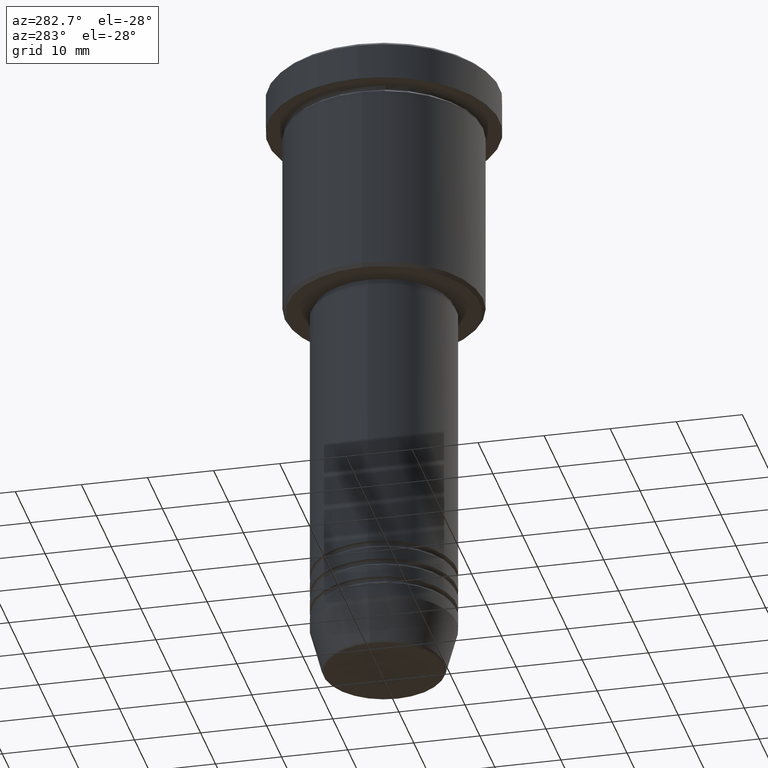
[diagram: clean part render]
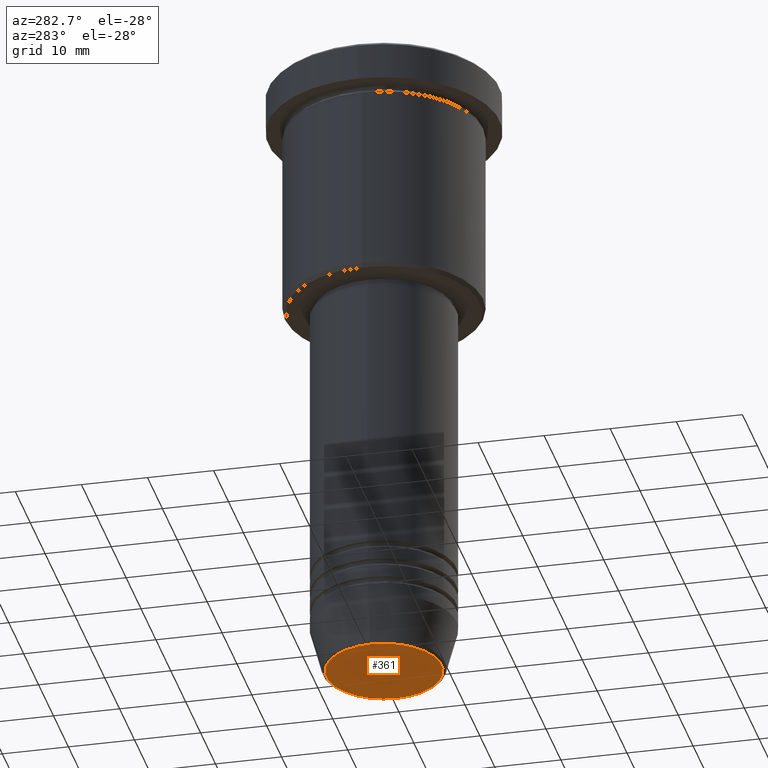
[diagram: same view with one face highlighted and labeled with its STEP entity id]
A machine part, auxiliary view. The second image highlights one B-rep face of the part: STEP entity #361.
In plain terms, the highlighted planar face has unit normal (0, -0, 1).
Its self-contained STEP definition (entity closure, byte-faithful):
#28 = AXIS2_PLACEMENT_3D ( 'NONE', #530, #804, #73 ) ;
#31 = CIRCLE ( 'NONE', #702, 8.740692158992652949 ) ;
#59 = DIRECTION ( 'NONE',  ( 1.000000000000000000, 0.000000000000000000, 0.000000000000000000 ) ) ;
#73 = DIRECTION ( 'NONE',  ( 1.000000000000000000, 0.000000000000000000, 0.000000000000000000 ) ) ;
#97 = FACE_OUTER_BOUND ( 'NONE', #385, .T. ) ;
#188 = ORIENTED_EDGE ( 'NONE', *, *, #291, .T. ) ;
#291 = EDGE_CURVE ( 'NONE', #533, #1182, #1115, .T. ) ;
#324 = CARTESIAN_POINT ( 'NONE',  ( 0.000000000000000000, 0.000000000000000000, -96.00000000000000000 ) ) ;
#361 = ADVANCED_FACE ( 'NONE', ( #97 ), #821, .F. ) ;
#385 = EDGE_LOOP ( 'NONE', ( #188, #992 ) ) ;
#445 = AXIS2_PLACEMENT_3D ( 'NONE', #324, #616, #59 ) ;
#530 = CARTESIAN_POINT ( 'NONE',  ( 0.000000000000000000, 0.000000000000000000, -96.00000000000000000 ) ) ;
#533 = VERTEX_POINT ( 'NONE', #856 ) ;
#552 = DIRECTION ( 'NONE',  ( 0.000000000000000000, 0.000000000000000000, -1.000000000000000000 ) ) ;
#616 = DIRECTION ( 'NONE',  ( 0.000000000000000000, 0.000000000000000000, -1.000000000000000000 ) ) ;
#702 = AXIS2_PLACEMENT_3D ( 'NONE', #1084, #552, #825 ) ;
#758 = EDGE_CURVE ( 'NONE', #1182, #533, #31, .T. ) ;
#804 = DIRECTION ( 'NONE',  ( 0.000000000000000000, -0.000000000000000000, 1.000000000000000000 ) ) ;
#821 = PLANE ( 'NONE',  #28 ) ;
#825 = DIRECTION ( 'NONE',  ( 1.000000000000000000, 0.000000000000000000, 0.000000000000000000 ) ) ;
#856 = CARTESIAN_POINT ( 'NONE',  ( 8.740692158992652949, 0.000000000000000000, -96.00000000000000000 ) ) ;
#921 = CARTESIAN_POINT ( 'NONE',  ( -8.740692158992652949, 1.099999016768739259E-15, -96.00000000000000000 ) ) ;
#992 = ORIENTED_EDGE ( 'NONE', *, *, #758, .T. ) ;
#1084 = CARTESIAN_POINT ( 'NONE',  ( 0.000000000000000000, 0.000000000000000000, -96.00000000000000000 ) ) ;
#1115 = CIRCLE ( 'NONE', #445, 8.740692158992652949 ) ;
#1182 = VERTEX_POINT ( 'NONE', #921 ) ;